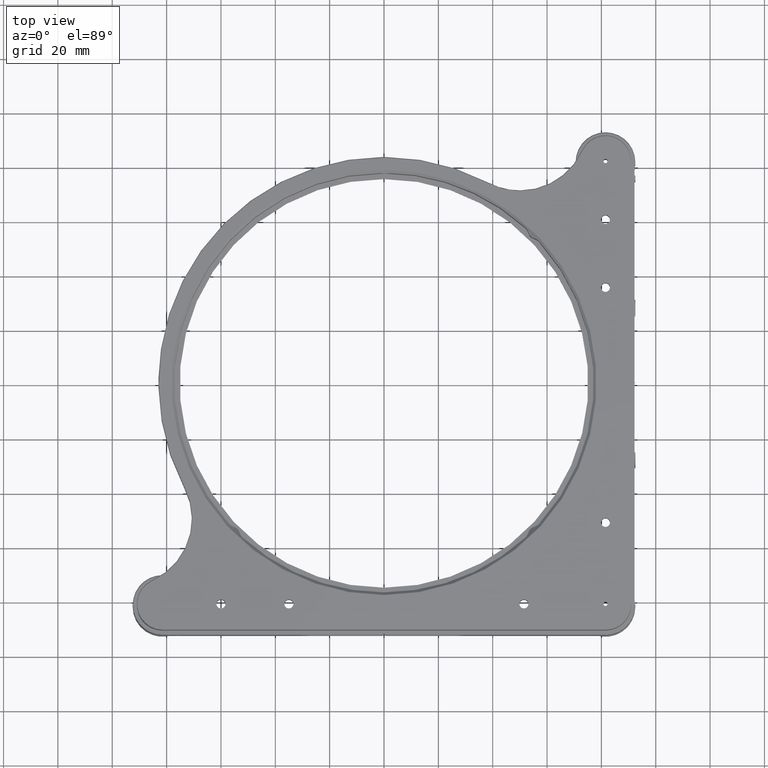
[diagram: clean part render]
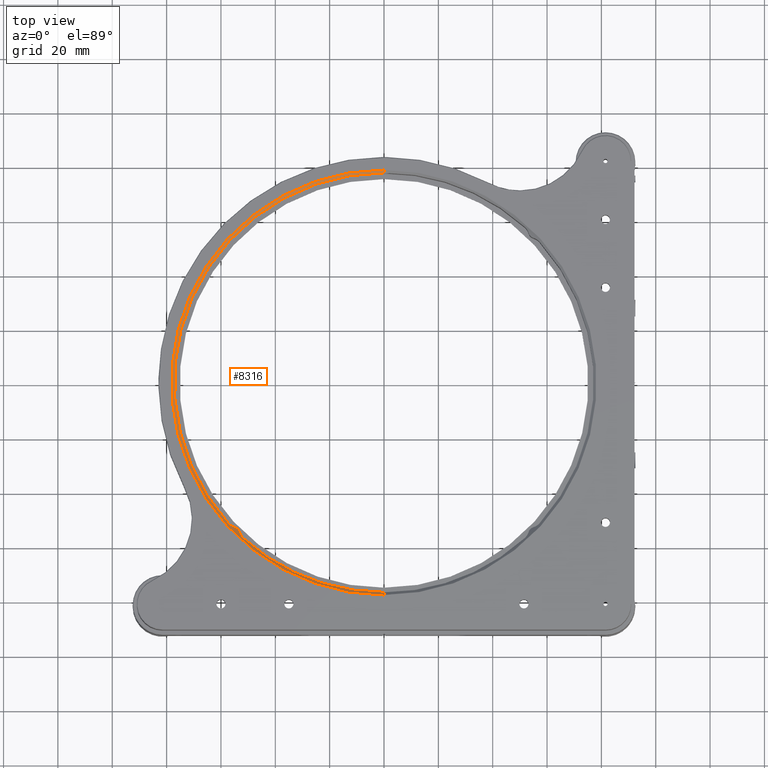
[diagram: same view with one face highlighted and labeled with its STEP entity id]
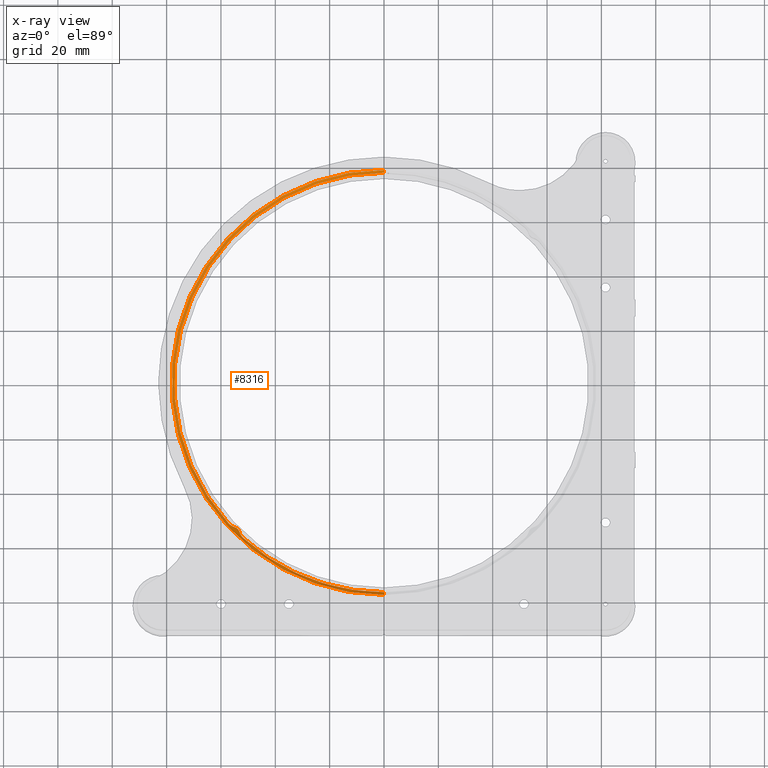
[diagram: x-ray of the same camera — body ghosted, the highlighted face saturated]
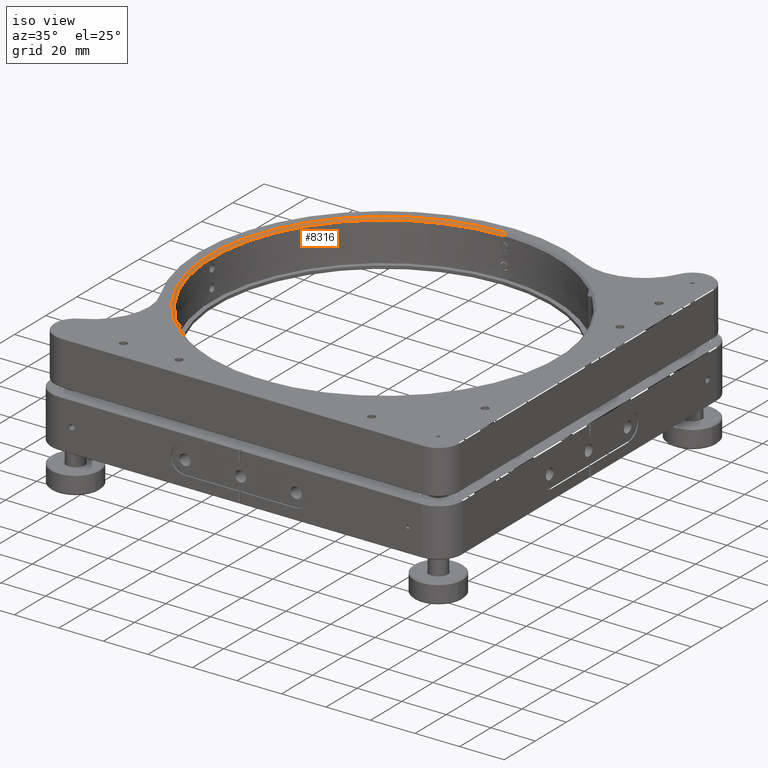
[diagram: same view with one face highlighted and labeled with its STEP entity id]
A machine part, top view. The second image highlights one B-rep face of the part: STEP entity #8316.
The next image is the same camera in x-ray: the body ghosted, the highlighted face saturated — about 0% of this face is hidden behind the body in this view.
A second angle (iso view) of the same face is appended — the face is thin or edge-on in the first view.
In plain terms, the highlighted conical surface has half-angle 45 deg.
Its self-contained STEP definition (entity closure, byte-faithful):
#2 = CARTESIAN_POINT ( 'NONE',  ( -56.54523490211957437, -52.46736165307506639, 32.92144428145540758 ) ) ;
#92 = EDGE_CURVE ( 'NONE', #600, #7569, #1660, .T. ) ;
#461 = CARTESIAN_POINT ( 'NONE',  ( -53.12999158518115195, -55.35294177947366023, 32.50948884477060119 ) ) ;
#600 = VERTEX_POINT ( 'NONE', #3194 ) ;
#677 = CARTESIAN_POINT ( 'NONE',  ( -2.331499493058488440E-13, 77.20000000000007390, 32.98528137423858198 ) ) ;
#794 = CARTESIAN_POINT ( 'NONE',  ( -53.72829147543115624, -54.03466984547817020, 31.98519948364422660 ) ) ;
#801 = DIRECTION ( 'NONE',  ( -6.383782391594647149E-16, 1.000000000000000000, 0.000000000000000000 ) ) ;
#939 = EDGE_CURVE ( 'NONE', #6519, #3307, #12390, .T. ) ;
#994 = CIRCLE ( 'NONE', #10888, 77.20000000000031548 ) ;
#1589 = VECTOR ( 'NONE', #1910, 1000.000000000000000 ) ;
#1650 = CARTESIAN_POINT ( 'NONE',  ( -54.94072681683846326, -53.25182191096934758, 32.29828680468813218 ) ) ;
#1660 = CIRCLE ( 'NONE', #10720, 78.20000000000032969 ) ;
#1708 = CARTESIAN_POINT ( 'NONE',  ( -54.56872257297838757, -53.38507696497685373, 32.12446251635410022 ) ) ;
#1709 = CARTESIAN_POINT ( 'NONE',  ( -53.25182191096968154, -54.94072681683810799, 32.29828680468810376 ) ) ;
#1772 = CARTESIAN_POINT ( 'NONE',  ( -54.75351758870377239, -53.30715168626047529, 32.20236847447689144 ) ) ;
#1910 = DIRECTION ( 'NONE',  ( 3.648070090316275357E-16, -0.7071067811865502373, 0.7071067811865447972 ) ) ;
#1923 = CARTESIAN_POINT ( 'NONE',  ( -1.838671364626931628E-13, 8.326672684688669004E-14, 32.98528137423858198 ) ) ;
#1951 = CONICAL_SURFACE ( 'NONE', #7647, 78.20000000000032969, 0.7853981633974500554 ) ;
#2404 = VERTEX_POINT ( 'NONE', #11388 ) ;
#2532 = ORIENTED_EDGE ( 'NONE', *, *, #8875, .F. ) ;
#2714 = CARTESIAN_POINT ( 'NONE',  ( -54.03607346790699495, -53.72711258843926174, 31.98536360924199329 ) ) ;
#2844 = EDGE_CURVE ( 'NONE', #2404, #3214, #11345, .T. ) ;
#2925 = DIRECTION ( 'NONE',  ( 1.460576560598802145E-21, -2.373071560003761499E-36, 1.000000000000000000 ) ) ;
#3031 = EDGE_CURVE ( 'NONE', #3214, #6519, #8346, .T. ) ;
#3194 = CARTESIAN_POINT ( 'NONE',  ( -2.337883133043870931E-13, 78.20000000000041496, 33.98528137423857487 ) ) ;
#3214 = VERTEX_POINT ( 'NONE', #11464 ) ;
#3229 = CARTESIAN_POINT ( 'NONE',  ( -52.46557997410969421, -56.54760996665650907, 32.92197270443104173 ) ) ;
#3307 = VERTEX_POINT ( 'NONE', #5206 ) ;
#3369 = CARTESIAN_POINT ( 'NONE',  ( -53.25182191096968154, -54.94072681683810799, 32.29828680468810376 ) ) ;
#3451 = FACE_OUTER_BOUND ( 'NONE', #12035, .T. ) ;
#3631 = ORIENTED_EDGE ( 'NONE', *, *, #9113, .T. ) ;
#3643 = ORIENTED_EDGE ( 'NONE', *, *, #3031, .F. ) ;
#4024 = CARTESIAN_POINT ( 'NONE',  ( -55.75702506756827859, -52.95422081431652117, 32.67998434859872248 ) ) ;
#4030 = DIRECTION ( 'NONE',  ( 1.460576560598802145E-21, -2.373071560003761499E-36, 1.000000000000000000 ) ) ;
#4031 = CARTESIAN_POINT ( 'NONE',  ( -1.838671364626931628E-13, 8.326672684688669004E-14, 32.98528137423858198 ) ) ;
#4206 = ORIENTED_EDGE ( 'NONE', *, *, #92, .T. ) ;
#4319 = ORIENTED_EDGE ( 'NONE', *, *, #939, .F. ) ;
#4395 = EDGE_CURVE ( 'NONE', #3307, #7091, #994, .T. ) ;
#4688 = CARTESIAN_POINT ( 'NONE',  ( -53.59779527342831074, -54.20511855079914909, 32.01439134137257270 ) ) ;
#4747 = CARTESIAN_POINT ( 'NONE',  ( -54.20506230599406194, -53.59782981965652482, 32.01437550908389085 ) ) ;
#5093 = DIRECTION ( 'NONE',  ( -6.383782391594646163E-16, 1.000000000000000000, 0.000000000000000000 ) ) ;
#5206 = CARTESIAN_POINT ( 'NONE',  ( -51.81259648869853862, -57.23019172691430612, 32.98528137423858198 ) ) ;
#5210 = CARTESIAN_POINT ( 'NONE',  ( -2.337883133043870931E-13, 78.20000000000041496, 33.98528137423857487 ) ) ;
#5343 = CARTESIAN_POINT ( 'NONE',  ( -52.95297397571096809, -55.75954992172191282, 32.68095573082315752 ) ) ;
#5623 = CARTESIAN_POINT ( 'NONE',  ( -53.30716065262294023, -54.75348725086604418, 32.20235293061330850 ) ) ;
#5690 = CARTESIAN_POINT ( 'NONE',  ( -53.38509452831702617, -54.56869535739306087, 32.12445547186813144 ) ) ;
#5740 = ORIENTED_EDGE ( 'NONE', *, *, #4395, .F. ) ;
#5745 = CARTESIAN_POINT ( 'NONE',  ( -53.25182191096968154, -54.94072681683810799, 32.29828680468810376 ) ) ;
#5897 = CARTESIAN_POINT ( 'NONE',  ( -57.23019172691461876, -51.81259648869819756, 32.98528137423856776 ) ) ;
#6368 = VERTEX_POINT ( 'NONE', #677 ) ;
#6519 = VERTEX_POINT ( 'NONE', #1709 ) ;
#6745 = DIRECTION ( 'NONE',  ( 1.460576560598802145E-21, -2.373071560003761499E-36, 1.000000000000000000 ) ) ;
#6798 = CARTESIAN_POINT ( 'NONE',  ( -1.435226946691787258E-13, -78.20000000000024443, 33.98528137423857487 ) ) ;
#7091 = VERTEX_POINT ( 'NONE', #7108 ) ;
#7108 = CARTESIAN_POINT ( 'NONE',  ( -1.440386096890000275E-13, -77.20000000000024443, 32.98528137423858198 ) ) ;
#7247 = CARTESIAN_POINT ( 'NONE',  ( -52.16870757724494467, -56.90779126696038759, 32.98528137423892304 ) ) ;
#7569 = VERTEX_POINT ( 'NONE', #11237 ) ;
#7647 = AXIS2_PLACEMENT_3D ( 'NONE', #11500, #11291, #10514 ) ;
#7984 = CARTESIAN_POINT ( 'NONE',  ( -56.90788314975710449, -52.16860608705862745, 32.98528137423895146 ) ) ;
#8316 = ADVANCED_FACE ( 'NONE', ( #3451 ), #1951, .F. ) ;
#8346 = B_SPLINE_CURVE_WITH_KNOTS ( 'NONE', 3,
 ( #1650, #1772, #1708, #4747, #2714, #794, #4688, #5690, #5623, #5745 ),
 .UNSPECIFIED., .F., .F.,
 ( 4, 2, 2, 2, 4 ),
 ( 2.298288733712687306E-07, 0.0006456241498412699500, 0.001291018470809168674, 0.001936412791777067507, 0.002581807112744966340 ),
 .UNSPECIFIED. ) ;
#8357 = CARTESIAN_POINT ( 'NONE',  ( -51.81259648869853862, -57.23019172691430612, 32.98528137423858198 ) ) ;
#8875 = EDGE_CURVE ( 'NONE', #7091, #7569, #11930, .T. ) ;
#9113 = EDGE_CURVE ( 'NONE', #6368, #600, #11403, .T. ) ;
#9210 = DIRECTION ( 'NONE',  ( -4.514005490879963279E-16, 0.7071067811865502373, 0.7071067811865447972 ) ) ;
#9277 = DIRECTION ( 'NONE',  ( -6.383782391594646163E-16, 1.000000000000000000, 0.000000000000000000 ) ) ;
#9690 = CARTESIAN_POINT ( 'NONE',  ( -1.838671350021167172E-13, 8.326672684688669004E-14, 33.98528137423857487 ) ) ;
#9744 = AXIS2_PLACEMENT_3D ( 'NONE', #4031, #2925, #5093 ) ;
#9790 = ORIENTED_EDGE ( 'NONE', *, *, #9821, .F. ) ;
#9821 = EDGE_CURVE ( 'NONE', #6368, #2404, #12690, .T. ) ;
#9902 = CARTESIAN_POINT ( 'NONE',  ( -55.35278209787172443, -53.13003877915336659, 32.50940703046688895 ) ) ;
#10514 = DIRECTION ( 'NONE',  ( -6.383782391594647149E-16, 1.000000000000000000, 0.000000000000000000 ) ) ;
#10720 = AXIS2_PLACEMENT_3D ( 'NONE', #9690, #6745, #801 ) ;
#10888 = AXIS2_PLACEMENT_3D ( 'NONE', #1923, #4030, #9277 ) ;
#11089 = CARTESIAN_POINT ( 'NONE',  ( -54.94072681683846326, -53.25182191096934758, 32.29828680468813218 ) ) ;
#11237 = CARTESIAN_POINT ( 'NONE',  ( -1.435226946691787258E-13, -78.20000000000024443, 33.98528137423857487 ) ) ;
#11284 = VECTOR ( 'NONE', #9210, 1000.000000000000000 ) ;
#11291 = DIRECTION ( 'NONE',  ( 1.460576560598802145E-21, -2.373071560003761499E-36, 1.000000000000000000 ) ) ;
#11345 = B_SPLINE_CURVE_WITH_KNOTS ( 'NONE', 3,
 ( #5897, #7984, #2, #4024, #9902, #11089 ),
 .UNSPECIFIED., .F., .F.,
 ( 4, 2, 4 ),
 ( 2.651785977534308723E-07, 0.001416401442948206834, 0.002832537707298660168 ),
 .UNSPECIFIED. ) ;
#11388 = CARTESIAN_POINT ( 'NONE',  ( -57.23019172691461876, -51.81259648869819756, 32.98528137423856776 ) ) ;
#11403 = LINE ( 'NONE', #5210, #11284 ) ;
#11464 = CARTESIAN_POINT ( 'NONE',  ( -54.94072681683846326, -53.25182191096934758, 32.29828680468813218 ) ) ;
#11500 = CARTESIAN_POINT ( 'NONE',  ( -1.838671350021167172E-13, 8.326672684688669004E-14, 33.98528137423857487 ) ) ;
#11930 = LINE ( 'NONE', #6798, #1589 ) ;
#12035 = EDGE_LOOP ( 'NONE', ( #2532, #5740, #4319, #3643, #12964, #9790, #3631, #4206 ) ) ;
#12390 = B_SPLINE_CURVE_WITH_KNOTS ( 'NONE', 3,
 ( #3369, #461, #5343, #3229, #7247, #8357 ),
 .UNSPECIFIED., .F., .F.,
 ( 4, 2, 4 ),
 ( 2.297875102247402760E-07, 0.001421061624813959407, 0.002841893462117693787 ),
 .UNSPECIFIED. ) ;
#12690 = CIRCLE ( 'NONE', #9744, 77.20000000000031548 ) ;
#12964 = ORIENTED_EDGE ( 'NONE', *, *, #2844, .F. ) ;